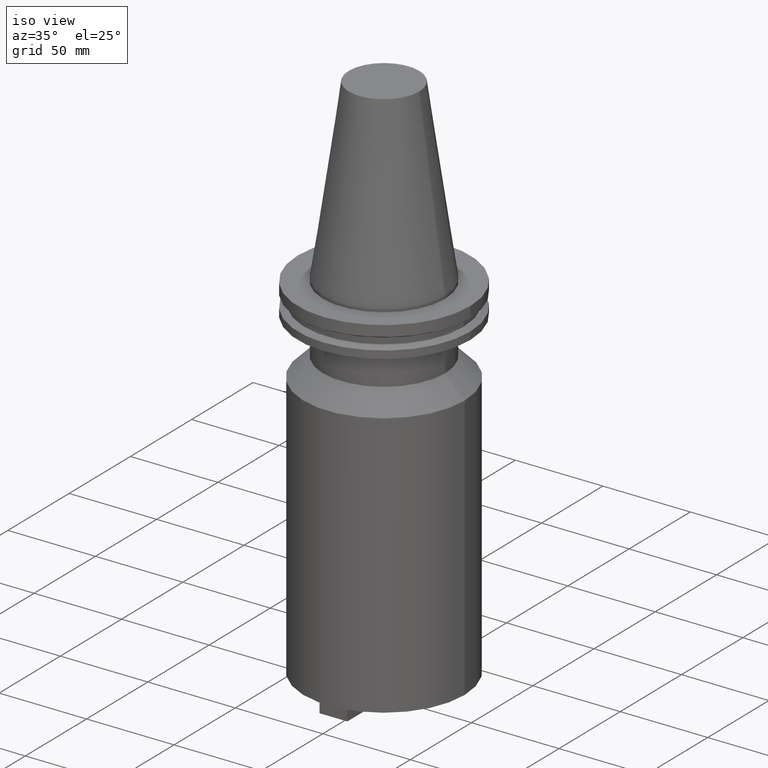
[diagram: clean part render]
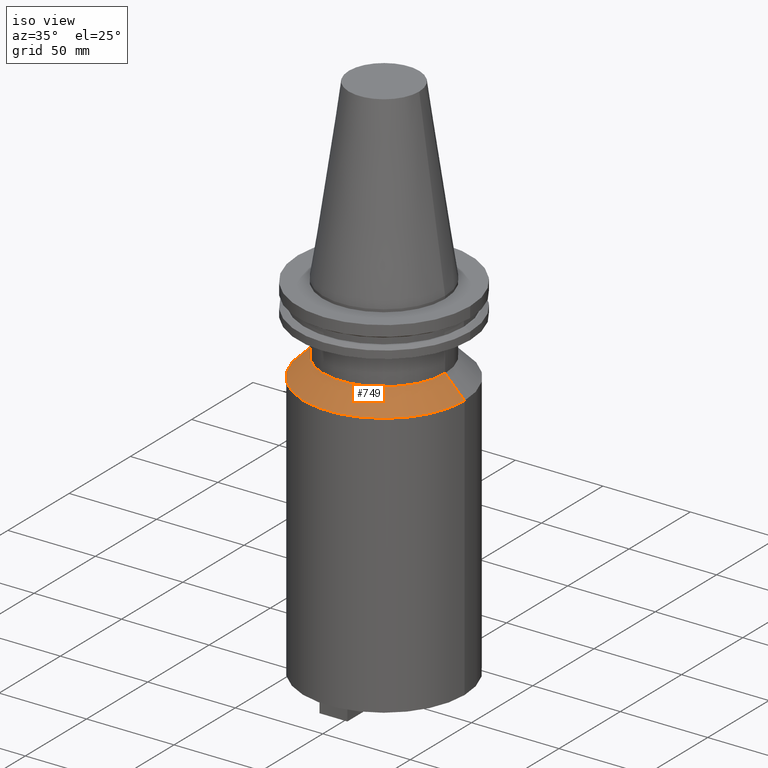
[diagram: same view with one face highlighted and labeled with its STEP entity id]
A machine part, iso view. The second image highlights one B-rep face of the part: STEP entity #749.
In plain terms, the highlighted conical surface has half-angle 45 deg.
Its self-contained STEP definition (entity closure, byte-faithful):
#17 = CONICAL_SURFACE ( 'NONE', #921, 46.04999999999999716, 0.7853981633974501664 ) ;
#53 = VECTOR ( 'NONE', #348, 999.9999999999998863 ) ;
#104 = ORIENTED_EDGE ( 'NONE', *, *, #957, .F. ) ;
#106 = CIRCLE ( 'NONE', #396, 46.04999999999999716 ) ;
#142 = VERTEX_POINT ( 'NONE', #961 ) ;
#164 = ORIENTED_EDGE ( 'NONE', *, *, #178, .T. ) ;
#178 = EDGE_CURVE ( 'NONE', #814, #1044, #106, .T. ) ;
#185 = CARTESIAN_POINT ( 'NONE',  ( 0.000000000000000000, 0.000000000000000000, -51.12499999999995026 ) ) ;
#247 = ORIENTED_EDGE ( 'NONE', *, *, #697, .F. ) ;
#267 = DIRECTION ( 'NONE',  ( -0.000000000000000000, -0.000000000000000000, 1.000000000000000000 ) ) ;
#281 = VECTOR ( 'NONE', #1061, 999.9999999999998863 ) ;
#310 = CARTESIAN_POINT ( 'NONE',  ( -34.92499999999999716, 4.277078946022130887E-15, -39.99999999999999289 ) ) ;
#348 = DIRECTION ( 'NONE',  ( -0.7071067811865489050, 0.000000000000000000, -0.7071067811865462405 ) ) ;
#373 = DIRECTION ( 'NONE',  ( 1.000000000000000000, 0.000000000000000000, 0.000000000000000000 ) ) ;
#396 = AXIS2_PLACEMENT_3D ( 'NONE', #185, #267, #373 ) ;
#402 = CARTESIAN_POINT ( 'NONE',  ( 0.000000000000000000, 0.000000000000000000, -39.99999999999999289 ) ) ;
#424 = LINE ( 'NONE', #598, #53 ) ;
#433 = CARTESIAN_POINT ( 'NONE',  ( -46.04999999999999716, 0.000000000000000000, -51.12499999999995026 ) ) ;
#436 = EDGE_LOOP ( 'NONE', ( #104, #247, #490, #164 ) ) ;
#461 = CARTESIAN_POINT ( 'NONE',  ( 46.04999999999999716, 5.639498510073560988E-15, -51.12499999999995026 ) ) ;
#490 = ORIENTED_EDGE ( 'NONE', *, *, #1083, .T. ) ;
#569 = CIRCLE ( 'NONE', #943, 34.92499999999999716 ) ;
#589 = DIRECTION ( 'NONE',  ( -1.000000000000000000, 0.000000000000000000, 0.000000000000000000 ) ) ;
#598 = CARTESIAN_POINT ( 'NONE',  ( -46.04999999999999716, 0.000000000000000000, -51.12499999999995026 ) ) ;
#673 = DIRECTION ( 'NONE',  ( 1.000000000000000000, 0.000000000000000000, 0.000000000000000000 ) ) ;
#697 = EDGE_CURVE ( 'NONE', #914, #142, #569, .T. ) ;
#749 = ADVANCED_FACE ( 'NONE', ( #752 ), #17, .T. ) ;
#752 = FACE_OUTER_BOUND ( 'NONE', #436, .T. ) ;
#801 = CARTESIAN_POINT ( 'NONE',  ( 46.04999999999999716, 5.639498510073560988E-15, -51.12499999999995026 ) ) ;
#814 = VERTEX_POINT ( 'NONE', #433 ) ;
#829 = DIRECTION ( 'NONE',  ( -0.000000000000000000, -0.000000000000000000, 1.000000000000000000 ) ) ;
#887 = LINE ( 'NONE', #801, #281 ) ;
#914 = VERTEX_POINT ( 'NONE', #310 ) ;
#921 = AXIS2_PLACEMENT_3D ( 'NONE', #927, #1013, #589 ) ;
#927 = CARTESIAN_POINT ( 'NONE',  ( 0.000000000000000000, 0.000000000000000000, -51.12499999999995026 ) ) ;
#943 = AXIS2_PLACEMENT_3D ( 'NONE', #402, #829, #673 ) ;
#957 = EDGE_CURVE ( 'NONE', #142, #1044, #887, .T. ) ;
#961 = CARTESIAN_POINT ( 'NONE',  ( 34.92499999999999716, 0.000000000000000000, -39.99999999999999289 ) ) ;
#1013 = DIRECTION ( 'NONE',  ( 0.000000000000000000, 0.000000000000000000, -1.000000000000000000 ) ) ;
#1044 = VERTEX_POINT ( 'NONE', #461 ) ;
#1061 = DIRECTION ( 'NONE',  ( 0.7071067811865489050, 8.659560562354950115E-17, -0.7071067811865462405 ) ) ;
#1083 = EDGE_CURVE ( 'NONE', #914, #814, #424, .T. ) ;